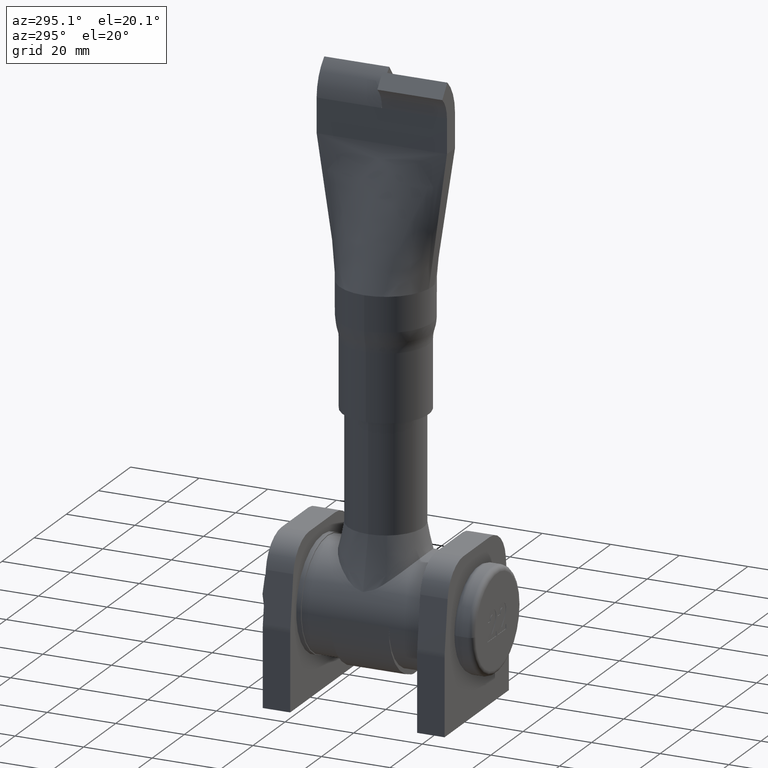
[diagram: clean part render]
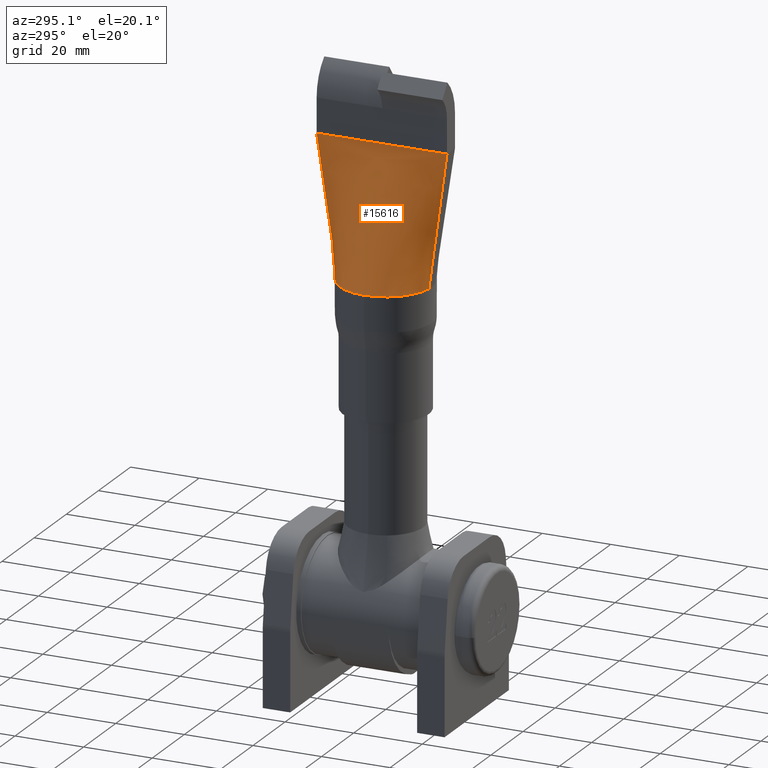
[diagram: same view with one face highlighted and labeled with its STEP entity id]
A machine part, auxiliary view. The second image highlights one B-rep face of the part: STEP entity #15616.
In plain terms, the highlighted face is a freeform B-spline surface patch.
Its self-contained STEP definition (entity closure, byte-faithful):
#80 = CARTESIAN_POINT ( 'NONE',  ( -1.753747278910871200, -13.32847931972258200, 35.60999999999999200 ) ) ;
#213 = ORIENTED_EDGE ( 'NONE', *, *, #784, .T. ) ;
#497 = LINE ( 'NONE', #3680, #19438 ) ;
#588 = CARTESIAN_POINT ( 'NONE',  ( -2.499999999999999100, 19.38000000000000300, 75.00000000000001400 ) ) ;
#784 = EDGE_CURVE ( 'NONE', #2843, #11754, #15734, .T. ) ;
#882 = AXIS2_PLACEMENT_3D ( 'NONE', #10595, #15291, #12426 ) ;
#913 = CARTESIAN_POINT ( 'NONE',  ( -12.65540720196998400, 4.793425212886246500, 36.00000000000001400 ) ) ;
#972 = CARTESIAN_POINT ( 'NONE',  ( -2.480551781824934700, 15.86940375079040200, 75.47627806677046200 ) ) ;
#1051 = CARTESIAN_POINT ( 'NONE',  ( -4.713472168121445100, 12.66915449192504500, 36.00000000000000000 ) ) ;
#1113 = CARTESIAN_POINT ( 'NONE',  ( -2.499999999999999100, 17.41666666666665700, 75.00000000000001400 ) ) ;
#1176 = CARTESIAN_POINT ( 'NONE',  ( -2.500000000000000400, 6.333333333333300200, 74.99999999999998600 ) ) ;
#1235 = CARTESIAN_POINT ( 'NONE',  ( -2.365665160654488300, 0.7892852299151682500, 75.47627806677049000 ) ) ;
#1305 = CARTESIAN_POINT ( 'NONE',  ( -8.536583567296174700, -10.49102263281905000, 36.00000000000002800 ) ) ;
#1372 = CARTESIAN_POINT ( 'NONE',  ( -4.735606889802664200, -12.64542937017763100, 35.60999999999999200 ) ) ;
#1432 = CARTESIAN_POINT ( 'NONE',  ( -2.500000000000001800, 0.7916666666666327700, 75.00000000000001400 ) ) ;
#1502 = CARTESIAN_POINT ( 'NONE',  ( -2.500000000000002200, -5.541666666666695400, 75.00000000000001400 ) ) ;
#1715 = CARTESIAN_POINT ( 'NONE',  ( -2.509023198865770100, -19.06857631137982200, 75.47627806677046200 ) ) ;
#1847 = CARTESIAN_POINT ( 'NONE',  ( -2.500000000000003600, -18.20833333333333600, 75.00000000000001400 ) ) ;
#2100 = CARTESIAN_POINT ( 'NONE',  ( -1.761144577779223600, -13.38469859784399900, 36.00000000000000000 ) ) ;
#2472 = CARTESIAN_POINT ( 'NONE',  ( -2.510103597140494400, 19.19664770640758900, 75.47627806677046200 ) ) ;
#2536 = CARTESIAN_POINT ( 'NONE',  ( -2.457522591618200600, 13.47463191707884400, 75.47627806677046200 ) ) ;
#2607 = CARTESIAN_POINT ( 'NONE',  ( -1.753747278910865000, 13.32847931972258400, 35.60999999999999200 ) ) ;
#2669 = CARTESIAN_POINT ( 'NONE',  ( -2.500000000000000000, 12.66666666666664100, 74.99999999999998600 ) ) ;
#2745 = CARTESIAN_POINT ( 'NONE',  ( -2.499999999999999100, 18.20833333333332900, 75.00000000000001400 ) ) ;
#2815 = CARTESIAN_POINT ( 'NONE',  ( -12.65540720196998900, -4.793425212886241100, 36.00000000000000000 ) ) ;
#2843 = VERTEX_POINT ( 'NONE', #6583 ) ;
#2887 = CARTESIAN_POINT ( 'NONE',  ( -11.48194619633858500, -7.306340436564424200, 35.60999999999999200 ) ) ;
#2954 = CARTESIAN_POINT ( 'NONE',  ( -2.449659181008084100, -12.67738901128009500, 75.47627806677049000 ) ) ;
#3031 = CARTESIAN_POINT ( 'NONE',  ( -5.978259954575149100, -12.12372481275632000, 36.00000000000000000 ) ) ;
#3096 = CARTESIAN_POINT ( 'NONE',  ( -2.411411885741197500, -8.700254994273093300, 75.47627806677049000 ) ) ;
#3160 = CARTESIAN_POINT ( 'NONE',  ( -2.500000000000004000, -19.38000000000000300, 75.00000000000001400 ) ) ;
#3228 = CARTESIAN_POINT ( 'NONE',  ( -2.510103597140498800, -19.19664770640758900, 75.47627806677046200 ) ) ;
#3356 = CARTESIAN_POINT ( 'NONE',  ( -2.500000000000004000, -19.00000000000000000, 75.00000000000001400 ) ) ;
#3420 = CARTESIAN_POINT ( 'NONE',  ( -1.575041220367644700, -13.34945994146072600, 35.60999999999999200 ) ) ;
#3680 = CARTESIAN_POINT ( 'NONE',  ( -2.130567959856863400, 16.19231649491217300, 55.50000000000000000 ) ) ;
#4037 = CARTESIAN_POINT ( 'NONE',  ( -1.664394249639251900, 13.33896963059165600, 35.60999999999999200 ) ) ;
#4100 = CARTESIAN_POINT ( 'NONE',  ( -6.622154845377432200, 11.78866814206795000, 36.00000000000002800 ) ) ;
#4165 = CARTESIAN_POINT ( 'NONE',  ( -1.584199228086770900, 13.40791413345946900, 36.00000000000000000 ) ) ;
#4230 = CARTESIAN_POINT ( 'NONE',  ( -4.092516140771754100, 12.87970943382189400, 36.00000000000000000 ) ) ;
#4238 = EDGE_LOOP ( 'NONE', ( #213, #14440, #18709, #11773, #13468 ) ) ;
#4299 = CARTESIAN_POINT ( 'NONE',  ( -2.391396192682702100, 6.321568369076361500, 75.47627806677046200 ) ) ;
#4360 = CARTESIAN_POINT ( 'NONE',  ( -7.955349001749663500, -10.97133506281424400, 35.61000000000002100 ) ) ;
#4434 = CARTESIAN_POINT ( 'NONE',  ( -2.500000000000002700, -10.29166666666668200, 75.00000000000001400 ) ) ;
#4505 = CARTESIAN_POINT ( 'NONE',  ( -2.500000000000003100, -15.04166666666667700, 75.00000000000001400 ) ) ;
#4568 = CARTESIAN_POINT ( 'NONE',  ( -12.75696127398969000, -4.801776131681770600, 35.60999999999999200 ) ) ;
#4635 = CARTESIAN_POINT ( 'NONE',  ( -11.86762345156344800, -6.503519841678705200, 36.00000000000000000 ) ) ;
#4713 = CARTESIAN_POINT ( 'NONE',  ( -2.312203711858454600, -13.26291487679088400, 35.61000000000000700 ) ) ;
#4738 = CARTESIAN_POINT ( 'NONE',  ( -2.130567959856869200, -16.19231649491217000, 55.50000000000000000 ) ) ;
#4848 = CARTESIAN_POINT ( 'NONE',  ( -2.512264393689956700, -19.45279049646312300, 75.47627806677046200 ) ) ;
#5483 = CARTESIAN_POINT ( 'NONE',  ( -1.495730882273292400, 13.41955470527703300, 36.00000000000000000 ) ) ;
#5608 = CARTESIAN_POINT ( 'NONE',  ( -4.735606889802660600, 12.64542937017762900, 35.60999999999999200 ) ) ;
#5675 = CARTESIAN_POINT ( 'NONE',  ( -9.754032249523087100, 9.369827626963912700, 36.00000000000002800 ) ) ;
#5740 = CARTESIAN_POINT ( 'NONE',  ( -1.672667573900249400, 13.39627356164190500, 36.00000000000000000 ) ) ;
#5798 = CARTESIAN_POINT ( 'NONE',  ( -9.826572572018317700, 9.376442569900218500, 35.61000000000002100 ) ) ;
#5869 = CARTESIAN_POINT ( 'NONE',  ( -6.013042554120895400, 12.11037872755055200, 35.60999999999999200 ) ) ;
#5939 = CARTESIAN_POINT ( 'NONE',  ( -13.61000000000000300, 0.9886205055789777400, 35.61000000000002100 ) ) ;
#6007 = CARTESIAN_POINT ( 'NONE',  ( -10.41438548326908100, -8.737926560234182500, 35.60999999999999200 ) ) ;
#6032 = CARTESIAN_POINT ( 'NONE',  ( -2.499999999999999100, 19.00000000000000000, 75.00000000000001400 ) ) ;
#6033 = CARTESIAN_POINT ( 'NONE',  ( -2.499999999999999100, 19.00000000000000000, 75.00000000000001400 ) ) ;
#6041 = DIRECTION ( 'NONE',  ( 1.000000000000000000, 0.0000000000000000000, 0.0000000000000000000 ) ) ;
#6074 = CARTESIAN_POINT ( 'NONE',  ( -2.367001460569734000, -1.578573858738861100, 75.47627806677049000 ) ) ;
#6142 = CARTESIAN_POINT ( 'NONE',  ( -2.500000000000001800, -3.166666666666698500, 75.00000000000001400 ) ) ;
#6213 = CARTESIAN_POINT ( 'NONE',  ( -8.596949402969135800, -10.49301619248057400, 35.61000000000002100 ) ) ;
#6308 = DIRECTION ( 'NONE',  ( -0.01874855852282893500, -0.1424890447735001600, 0.9896187971501204700 ) ) ;
#6421 = CARTESIAN_POINT ( 'NONE',  ( -1.664394249639258100, -13.33896963059165400, 35.60999999999999200 ) ) ;
#6489 = CARTESIAN_POINT ( 'NONE',  ( -1.584199228086776900, -13.40791413345946400, 36.00000000000000000 ) ) ;
#6583 = CARTESIAN_POINT ( 'NONE',  ( -1.761143528651909700, 13.38469061141069500, 36.00000000000000000 ) ) ;
#6776 = LINE ( 'NONE', #4738, #7767 ) ;
#7160 = CARTESIAN_POINT ( 'NONE',  ( -12.75696127398968500, 4.801776131681775100, 35.61000000000000700 ) ) ;
#7170 = EDGE_CURVE ( 'NONE', #14316, #15216, #14614, .T. ) ;
#7201 = B_SPLINE_SURFACE_WITH_KNOTS ( 'NONE', 3, 1, ( 
 ( #11503, #5483, #588, #13215 ),
 ( #19448, #4165, #7432, #19713 ),
 ( #4037, #5740, #10204, #2472 ),
 ( #2607, #10344, #11765, #10401 ),
 ( #16632, #11839, #2745, #10273 ),
 ( #11903, #13480, #1113, #7226 ),
 ( #11970, #4230, #15171, #972 ),
 ( #5608, #1051, #8929, #12037 ),
 ( #5869, #19642, #7295, #2536 ),
 ( #13407, #4100, #2669, #15105 ),
 ( #14977, #15038, #16559, #18061 ),
 ( #14901, #16427, #10474, #13544 ),
 ( #5798, #5675, #7360, #8798 ),
 ( #13607, #18129, #18192, #16492 ),
 ( #19782, #8866, #1176, #4299 ),
 ( #19586, #16698, #18264, #19517 ),
 ( #7160, #913, #13337, #17994 ),
 ( #8730, #15366, #16768, #12173 ),
 ( #15304, #19853, #8997, #13957 ),
 ( #5939, #9069, #1432, #1235 ),
 ( #16911, #7779, #19924, #16843 ),
 ( #10540, #9199, #18549, #6074 ),
 ( #7640, #13811, #6142, #13751 ),
 ( #4568, #2815, #20070, #9136 ),
 ( #10817, #4635, #1502, #7495 ),
 ( #2887, #19996, #10748, #12102 ),
 ( #6007, #7563, #12300, #16978 ),
 ( #15494, #13679, #10604, #3096 ),
 ( #6213, #1305, #4434, #12366 ),
 ( #4360, #17046, #15238, #20137 ),
 ( #18334, #18401, #10674, #2954 ),
 ( #18472, #3031, #7713, #13879 ),
 ( #1372, #12237, #4505, #15435 ),
 ( #9264, #12511, #12713, #14026 ),
 ( #18827, #11143, #7977, #17372 ),
 ( #4713, #18620, #1847, #7916 ),
 ( #80, #12582, #3356, #1715 ),
 ( #6421, #15628, #18689, #3228 ),
 ( #3420, #6489, #15560, #9603 ),
 ( #14284, #10948, #3160, #4848 ) ),
 .UNSPECIFIED., .F., .F., .F.,
 ( 4, 3, 2, 2, 2, 2, 2, 2, 2, 2, 2, 2, 2, 2, 2, 2, 2, 3, 4 ),
 ( 2, 1, 1, 2 ),
 ( -0.01000000000000000000, 0.0000000000000000000, 0.06250000000000004200, 0.1250000000000000800, 0.1875000000000001100, 0.2500000000000001100, 0.3125000000000001100, 0.3750000000000000600, 0.4375000000000000600, 0.5000000000000000000, 0.5625000000000000000, 0.6250000000000000000, 0.6874999999999998900, 0.7499999999999997800, 0.8124999999999998900, 0.8749999999999998900, 0.9375000000000000000, 1.000000000000000000, 1.010000000000000000 ),
 ( -0.01000000000000000000, 0.0000000000000000000, 1.000000000000000000, 1.012212258122319400 ),
 .UNSPECIFIED. ) ;
#7226 = CARTESIAN_POINT ( 'NONE',  ( -2.495202280975659100, 17.46814921799464700, 75.47627806677046200 ) ) ;
#7289 = CIRCLE ( 'NONE', #882, 13.50000000000000000 ) ;
#7295 = CARTESIAN_POINT ( 'NONE',  ( -2.499999999999999600, 13.45833333333331300, 74.99999999999998600 ) ) ;
#7360 = CARTESIAN_POINT ( 'NONE',  ( -2.500000000000000400, 8.708333333333302000, 74.99999999999998600 ) ) ;
#7432 = CARTESIAN_POINT ( 'NONE',  ( -2.499999999999999100, 19.25333333333333400, 75.00000000000001400 ) ) ;
#7495 = CARTESIAN_POINT ( 'NONE',  ( -2.385600164416816800, -5.529920267417676200, 75.47627806677049000 ) ) ;
#7563 = CARTESIAN_POINT ( 'NONE',  ( -10.33602523095948600, -8.729795274159256400, 36.00000000000000000 ) ) ;
#7640 = CARTESIAN_POINT ( 'NONE',  ( -13.07279928926279300, -3.883753791603681300, 35.60999999999999200 ) ) ;
#7713 = CARTESIAN_POINT ( 'NONE',  ( -2.500000000000003100, -13.45833333333334600, 75.00000000000001400 ) ) ;
#7767 = VECTOR ( 'NONE', #6308, 1000.000000000000200 ) ;
#7779 = CARTESIAN_POINT ( 'NONE',  ( -13.50000000000000000, -0.9866704675699391500, 36.00000000000002800 ) ) ;
#7916 = CARTESIAN_POINT ( 'NONE',  ( -2.502270709648714200, -18.26813009245628500, 75.47627806677049000 ) ) ;
#7977 = CARTESIAN_POINT ( 'NONE',  ( -2.500000000000003100, -17.41666666666667500, 75.00000000000001400 ) ) ;
#8527 = AXIS2_PLACEMENT_3D ( 'NONE', #9433, #16947, #6041 ) ;
#8730 = CARTESIAN_POINT ( 'NONE',  ( -13.07279928926279300, 3.883753791603690200, 35.60999999999999200 ) ) ;
#8798 = CARTESIAN_POINT ( 'NONE',  ( -2.411411885741195200, 8.700254994273043600, 75.47627806677046200 ) ) ;
#8866 = CARTESIAN_POINT ( 'NONE',  ( -11.39301603597879600, 7.296706702869073500, 36.00000000000002800 ) ) ;
#8929 = CARTESIAN_POINT ( 'NONE',  ( -2.499999999999999100, 15.04166666666664800, 74.99999999999998600 ) ) ;
#8997 = CARTESIAN_POINT ( 'NONE',  ( -2.500000000000001300, 1.583333333333299300, 75.00000000000001400 ) ) ;
#9069 = CARTESIAN_POINT ( 'NONE',  ( -13.50000000000000200, 0.9866704675699445900, 36.00000000000002800 ) ) ;
#9136 = CARTESIAN_POINT ( 'NONE',  ( -2.375979545912283000, -3.948134975744412400, 75.47627806677049000 ) ) ;
#9199 = CARTESIAN_POINT ( 'NONE',  ( -13.39057716420164500, -1.973062615734197100, 36.00000000000000000 ) ) ;
#9224 = DIRECTION ( 'NONE',  ( 1.255391989193742200E-016, 1.000000000000000000, -0.0000000000000000000 ) ) ;
#9264 = CARTESIAN_POINT ( 'NONE',  ( -4.108441302179480600, -12.85017319482677700, 35.61000000000000700 ) ) ;
#9433 = CARTESIAN_POINT ( 'NONE',  ( 0.0000000000000000000, 0.0000000000000000000, 36.00000000000000000 ) ) ;
#9603 = CARTESIAN_POINT ( 'NONE',  ( -2.511183995415228000, -19.32471910143535600, 75.47627806677046200 ) ) ;
#9789 = EDGE_CURVE ( 'NONE', #11754, #13839, #7289, .T. ) ;
#10204 = CARTESIAN_POINT ( 'NONE',  ( -2.499999999999999100, 19.12666666666666500, 75.00000000000001400 ) ) ;
#10273 = CARTESIAN_POINT ( 'NONE',  ( -2.502270709648710200, 18.26813009245627800, 75.47627806677046200 ) ) ;
#10344 = CARTESIAN_POINT ( 'NONE',  ( -1.761135919713727700, 13.38463298982434100, 36.00000000000000000 ) ) ;
#10401 = CARTESIAN_POINT ( 'NONE',  ( -2.509023198865765600, 19.06857631137982200, 75.47627806677046200 ) ) ;
#10474 = CARTESIAN_POINT ( 'NONE',  ( -2.500000000000000400, 10.29166666666663800, 74.99999999999998600 ) ) ;
#10540 = CARTESIAN_POINT ( 'NONE',  ( -13.49948293584366100, -1.976959908558205200, 35.60999999999999200 ) ) ;
#10595 = CARTESIAN_POINT ( 'NONE',  ( 0.0000000000000000000, 0.0000000000000000000, 36.00000000000000000 ) ) ;
#10604 = CARTESIAN_POINT ( 'NONE',  ( -2.500000000000002700, -8.708333333333351700, 75.00000000000001400 ) ) ;
#10674 = CARTESIAN_POINT ( 'NONE',  ( -2.500000000000003100, -12.66666666666668000, 75.00000000000001400 ) ) ;
#10748 = CARTESIAN_POINT ( 'NONE',  ( -2.500000000000002200, -6.333333333333358800, 75.00000000000001400 ) ) ;
#10817 = CARTESIAN_POINT ( 'NONE',  ( -11.96129968607908400, -6.513138373428825300, 35.60999999999999200 ) ) ;
#10948 = CARTESIAN_POINT ( 'NONE',  ( -1.495730882273298400, -13.41955470527702600, 36.00000000000000000 ) ) ;
#11143 = CARTESIAN_POINT ( 'NONE',  ( -2.892860925169245400, -13.20102113966138700, 36.00000000000001400 ) ) ;
#11440 = VECTOR ( 'NONE', #9224, 1000.000000000000000 ) ;
#11503 = CARTESIAN_POINT ( 'NONE',  ( -1.485688191096025300, 13.35995025232979900, 35.60999999999999200 ) ) ;
#11754 = VERTEX_POINT ( 'NONE', #16939 ) ;
#11765 = CARTESIAN_POINT ( 'NONE',  ( -2.499999999999999100, 19.00000000000000000, 75.00000000000001400 ) ) ;
#11773 = ORIENTED_EDGE ( 'NONE', *, *, #7170, .T. ) ;
#11839 = CARTESIAN_POINT ( 'NONE',  ( -2.314063081047968300, 13.31187941596456900, 36.00000000000000000 ) ) ;
#11887 = FACE_OUTER_BOUND ( 'NONE', #4238, .T. ) ;
#11903 = CARTESIAN_POINT ( 'NONE',  ( -2.896789534420930200, 13.15886468439133600, 35.60999999999999200 ) ) ;
#11970 = CARTESIAN_POINT ( 'NONE',  ( -4.108441302179471700, 12.85017319482678000, 35.60999999999999200 ) ) ;
#12037 = CARTESIAN_POINT ( 'NONE',  ( -2.472968506536330000, 15.07064039774293600, 75.47627806677046200 ) ) ;
#12102 = CARTESIAN_POINT ( 'NONE',  ( -2.391396192682703400, -6.321568369076421100, 75.47627806677049000 ) ) ;
#12173 = CARTESIAN_POINT ( 'NONE',  ( -2.372160639607969300, 3.157996119076609700, 75.47627806677046200 ) ) ;
#12237 = CARTESIAN_POINT ( 'NONE',  ( -4.713472168121449500, -12.66915449192504700, 36.00000000000000000 ) ) ;
#12300 = CARTESIAN_POINT ( 'NONE',  ( -2.500000000000002200, -7.916666666666686500, 75.00000000000001400 ) ) ;
#12366 = CARTESIAN_POINT ( 'NONE',  ( -2.426279683299230200, -10.28923208014980300, 75.47627806677049000 ) ) ;
#12426 = DIRECTION ( 'NONE',  ( 1.000000000000000000, 0.0000000000000000000, 0.0000000000000000000 ) ) ;
#12511 = CARTESIAN_POINT ( 'NONE',  ( -4.092516140771762100, -12.87970943382189000, 36.00000000000001400 ) ) ;
#12582 = CARTESIAN_POINT ( 'NONE',  ( -1.761135919713734000, -13.38463298982434000, 36.00000000000000000 ) ) ;
#12713 = CARTESIAN_POINT ( 'NONE',  ( -2.500000000000003100, -15.83333333333334100, 75.00000000000001400 ) ) ;
#13215 = CARTESIAN_POINT ( 'NONE',  ( -2.512264393689951800, 19.45279049646312300, 75.47627806677046200 ) ) ;
#13337 = CARTESIAN_POINT ( 'NONE',  ( -2.500000000000001300, 3.958333333333299700, 74.99999999999998600 ) ) ;
#13407 = CARTESIAN_POINT ( 'NONE',  ( -6.663376393831207200, 11.77988815682196100, 35.61000000000002100 ) ) ;
#13468 = ORIENTED_EDGE ( 'NONE', *, *, #14341, .F. ) ;
#13480 = CARTESIAN_POINT ( 'NONE',  ( -2.892860925169237900, 13.20102113966138900, 36.00000000000000000 ) ) ;
#13544 = CARTESIAN_POINT ( 'NONE',  ( -2.426279683299227900, 10.28923208014976100, 75.47627806677046200 ) ) ;
#13607 = CARTESIAN_POINT ( 'NONE',  ( -10.41438548326907900, 8.737926560234191300, 35.61000000000000700 ) ) ;
#13679 = CARTESIAN_POINT ( 'NONE',  ( -9.754032249523088900, -9.369827626963910900, 36.00000000000001400 ) ) ;
#13751 = CARTESIAN_POINT ( 'NONE',  ( -2.372160639607969700, -3.157996119076676800, 75.47627806677049000 ) ) ;
#13811 = CARTESIAN_POINT ( 'NONE',  ( -12.96811810818098500, -3.876653919079552600, 36.00000000000000000 ) ) ;
#13839 = VERTEX_POINT ( 'NONE', #2100 ) ;
#13879 = CARTESIAN_POINT ( 'NONE',  ( -2.457522591618204200, -13.47463191707888100, 75.47627806677049000 ) ) ;
#13957 = CARTESIAN_POINT ( 'NONE',  ( -2.367001460569733600, 1.578573858738793000, 75.47627806677049000 ) ) ;
#14026 = CARTESIAN_POINT ( 'NONE',  ( -2.480551781824938300, -15.86940375079042700, 75.47627806677049000 ) ) ;
#14284 = CARTESIAN_POINT ( 'NONE',  ( -1.485688191096031600, -13.35995025232979700, 35.60999999999999200 ) ) ;
#14316 = VERTEX_POINT ( 'NONE', #19096 ) ;
#14341 = EDGE_CURVE ( 'NONE', #2843, #15216, #497, .T. ) ;
#14440 = ORIENTED_EDGE ( 'NONE', *, *, #9789, .T. ) ;
#14543 = DIRECTION ( 'NONE',  ( -0.01874855852282897700, 0.1424890447735001300, 0.9896187971501205800 ) ) ;
#14614 = LINE ( 'NONE', #6032, #11440 ) ;
#14901 = CARTESIAN_POINT ( 'NONE',  ( -8.596949402969130500, 10.49301619248058000, 35.61000000000000700 ) ) ;
#14977 = CARTESIAN_POINT ( 'NONE',  ( -7.955349001749654600, 10.97133506281424300, 35.61000000000002100 ) ) ;
#15038 = CARTESIAN_POINT ( 'NONE',  ( -7.901335645296688500, 10.97244395658175800, 36.00000000000002800 ) ) ;
#15105 = CARTESIAN_POINT ( 'NONE',  ( -2.449659181008081000, 12.67738901128005800, 75.47627806677046200 ) ) ;
#15171 = CARTESIAN_POINT ( 'NONE',  ( -2.499999999999999100, 15.83333333333331800, 75.00000000000001400 ) ) ;
#15216 = VERTEX_POINT ( 'NONE', #6033 ) ;
#15238 = CARTESIAN_POINT ( 'NONE',  ( -2.500000000000002700, -11.08333333333334800, 75.00000000000001400 ) ) ;
#15291 = DIRECTION ( 'NONE',  ( 0.0000000000000000000, 0.0000000000000000000, 1.000000000000000000 ) ) ;
#15304 = CARTESIAN_POINT ( 'NONE',  ( -13.49948293584366400, 1.976959908558214400, 35.60999999999999200 ) ) ;
#15366 = CARTESIAN_POINT ( 'NONE',  ( -12.96811810818098500, 3.876653919079561000, 36.00000000000000000 ) ) ;
#15435 = CARTESIAN_POINT ( 'NONE',  ( -2.472968506536334000, -15.07064039774296700, 75.47627806677049000 ) ) ;
#15494 = CARTESIAN_POINT ( 'NONE',  ( -9.826572572018319500, -9.376442569900216700, 35.61000000000000700 ) ) ;
#15560 = CARTESIAN_POINT ( 'NONE',  ( -2.500000000000004000, -19.25333333333333400, 75.00000000000001400 ) ) ;
#15616 = ADVANCED_FACE ( 'NONE', ( #11887 ), #7201, .T. ) ;
#15628 = CARTESIAN_POINT ( 'NONE',  ( -1.672667573900255400, -13.39627356164190200, 36.00000000000000000 ) ) ;
#15734 = CIRCLE ( 'NONE', #8527, 13.50000000000000000 ) ;
#16275 = EDGE_CURVE ( 'NONE', #13839, #14316, #6776, .T. ) ;
#16427 = CARTESIAN_POINT ( 'NONE',  ( -8.536583567296169400, 10.49102263281905500, 36.00000000000001400 ) ) ;
#16492 = CARTESIAN_POINT ( 'NONE',  ( -2.404304437226515700, 7.906736530225291700, 75.47627806677046200 ) ) ;
#16559 = CARTESIAN_POINT ( 'NONE',  ( -2.500000000000000400, 11.08333333333330600, 74.99999999999998600 ) ) ;
#16632 = CARTESIAN_POINT ( 'NONE',  ( -2.312203711858447500, 13.26291487679088200, 35.60999999999999200 ) ) ;
#16698 = CARTESIAN_POINT ( 'NONE',  ( -11.86762345156344600, 6.503519841678709700, 36.00000000000001400 ) ) ;
#16768 = CARTESIAN_POINT ( 'NONE',  ( -2.500000000000001300, 3.166666666666632800, 75.00000000000001400 ) ) ;
#16843 = CARTESIAN_POINT ( 'NONE',  ( -2.365665160654488300, -0.7892852299152358600, 75.47627806677049000 ) ) ;
#16911 = CARTESIAN_POINT ( 'NONE',  ( -13.61000000000000100, -0.9886205055789716300, 35.61000000000002100 ) ) ;
#16939 = CARTESIAN_POINT ( 'NONE',  ( -13.50000000000000200, -8.118002874494540000E-017, 36.00000000000001400 ) ) ;
#16947 = DIRECTION ( 'NONE',  ( 0.0000000000000000000, 0.0000000000000000000, 1.000000000000000000 ) ) ;
#16978 = CARTESIAN_POINT ( 'NONE',  ( -2.404304437226517400, -7.906736530225345800, 75.47627806677049000 ) ) ;
#17046 = CARTESIAN_POINT ( 'NONE',  ( -7.901335645296696500, -10.97244395658176000, 36.00000000000002800 ) ) ;
#17372 = CARTESIAN_POINT ( 'NONE',  ( -2.495202280975663100, -17.46814921799466400, 75.47627806677049000 ) ) ;
#17994 = CARTESIAN_POINT ( 'NONE',  ( -2.375979545912282100, 3.948134975744346200, 75.47627806677046200 ) ) ;
#18061 = CARTESIAN_POINT ( 'NONE',  ( -2.434037494894352600, 11.08468754302522000, 75.47627806677046200 ) ) ;
#18129 = CARTESIAN_POINT ( 'NONE',  ( -10.33602523095948400, 8.729795274159265300, 36.00000000000001400 ) ) ;
#18192 = CARTESIAN_POINT ( 'NONE',  ( -2.500000000000000400, 7.916666666666634100, 74.99999999999998600 ) ) ;
#18264 = CARTESIAN_POINT ( 'NONE',  ( -2.500000000000000400, 5.541666666666634100, 74.99999999999998600 ) ) ;
#18334 = CARTESIAN_POINT ( 'NONE',  ( -6.663376393831211600, -11.77988815682196100, 35.61000000000002100 ) ) ;
#18401 = CARTESIAN_POINT ( 'NONE',  ( -6.622154845377437500, -11.78866814206794800, 36.00000000000002800 ) ) ;
#18472 = CARTESIAN_POINT ( 'NONE',  ( -6.013042554120900700, -12.11037872755054900, 35.60999999999999200 ) ) ;
#18549 = CARTESIAN_POINT ( 'NONE',  ( -2.500000000000001800, -1.583333333333366300, 75.00000000000001400 ) ) ;
#18620 = CARTESIAN_POINT ( 'NONE',  ( -2.314063081047975000, -13.31187941596457100, 36.00000000000001400 ) ) ;
#18689 = CARTESIAN_POINT ( 'NONE',  ( -2.500000000000004000, -19.12666666666666500, 75.00000000000001400 ) ) ;
#18709 = ORIENTED_EDGE ( 'NONE', *, *, #16275, .T. ) ;
#18827 = CARTESIAN_POINT ( 'NONE',  ( -2.896789534420937800, -13.15886468439133400, 35.61000000000000700 ) ) ;
#19096 = CARTESIAN_POINT ( 'NONE',  ( -2.500000000000004000, -19.00000000000000000, 75.00000000000001400 ) ) ;
#19438 = VECTOR ( 'NONE', #14543, 1000.000000000000100 ) ;
#19448 = CARTESIAN_POINT ( 'NONE',  ( -1.575041220367638500, 13.34945994146072800, 35.60999999999999200 ) ) ;
#19517 = CARTESIAN_POINT ( 'NONE',  ( -2.385600164416815000, 5.529920267417614000, 75.47627806677046200 ) ) ;
#19586 = CARTESIAN_POINT ( 'NONE',  ( -11.96129968607908000, 6.513138373428830600, 35.61000000000000700 ) ) ;
#19642 = CARTESIAN_POINT ( 'NONE',  ( -5.978259954575144700, 12.12372481275632400, 36.00000000000000000 ) ) ;
#19713 = CARTESIAN_POINT ( 'NONE',  ( -2.511183995415223100, 19.32471910143535600, 75.47627806677046200 ) ) ;
#19782 = CARTESIAN_POINT ( 'NONE',  ( -11.48194619633858300, 7.306340436564432200, 35.61000000000002100 ) ) ;
#19853 = CARTESIAN_POINT ( 'NONE',  ( -13.39057716420164800, 1.973062615734205300, 36.00000000000000000 ) ) ;
#19924 = CARTESIAN_POINT ( 'NONE',  ( -2.500000000000001800, -0.7916666666666996000, 75.00000000000001400 ) ) ;
#19996 = CARTESIAN_POINT ( 'NONE',  ( -11.39301603597879800, -7.296706702869066400, 36.00000000000000000 ) ) ;
#20070 = CARTESIAN_POINT ( 'NONE',  ( -2.500000000000002200, -3.958333333333365000, 75.00000000000001400 ) ) ;
#20137 = CARTESIAN_POINT ( 'NONE',  ( -2.434037494894354800, -11.08468754302526100, 75.47627806677049000 ) ) ;